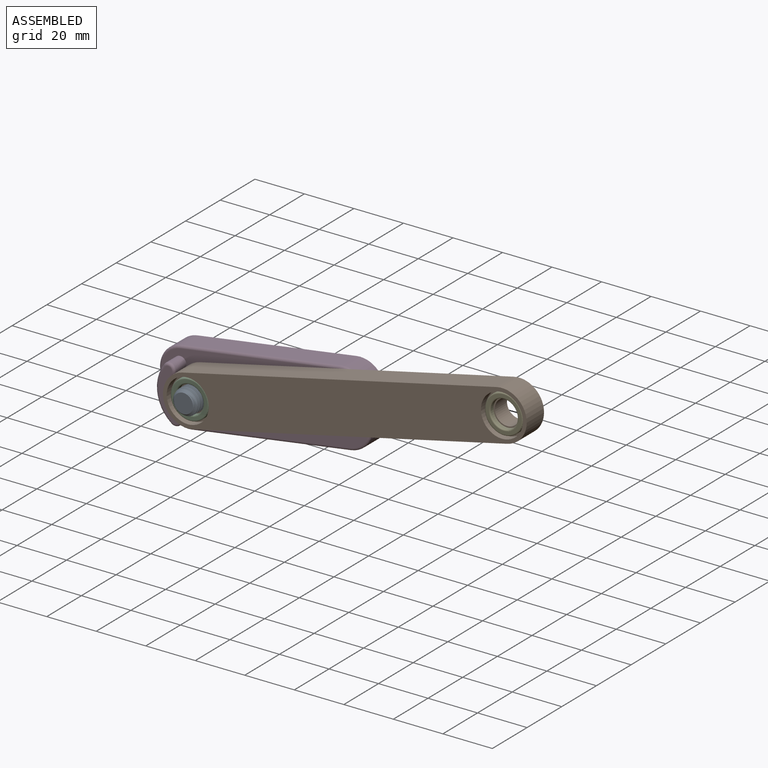
[diagram: assembled view]
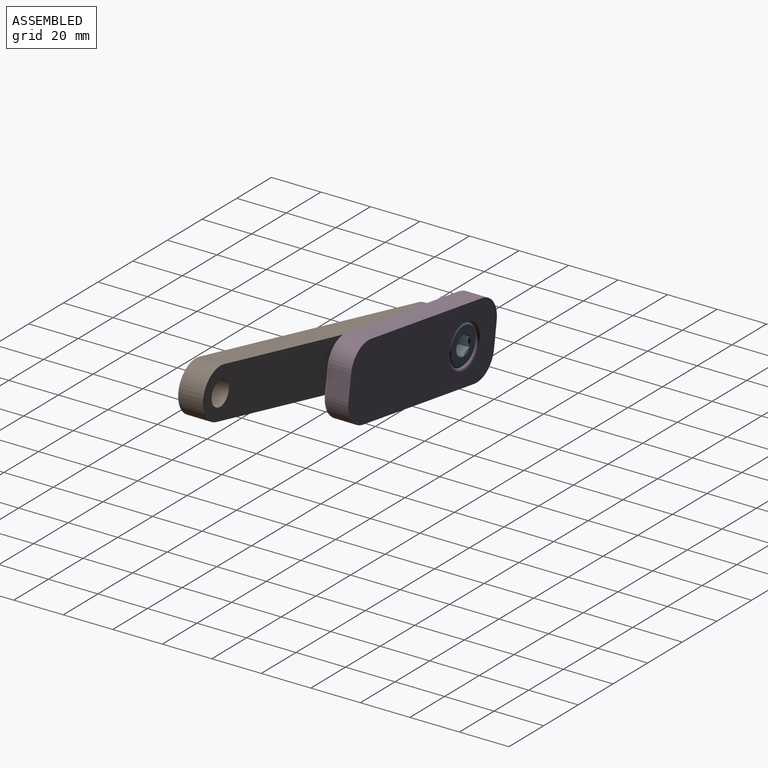
[diagram: assembled view, second angle]
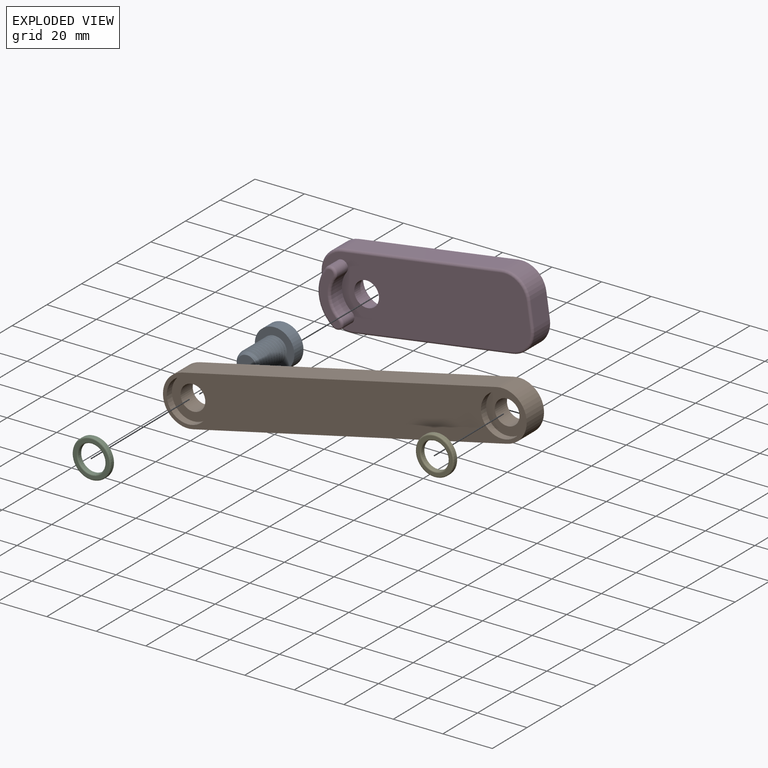
[diagram: exploded view]
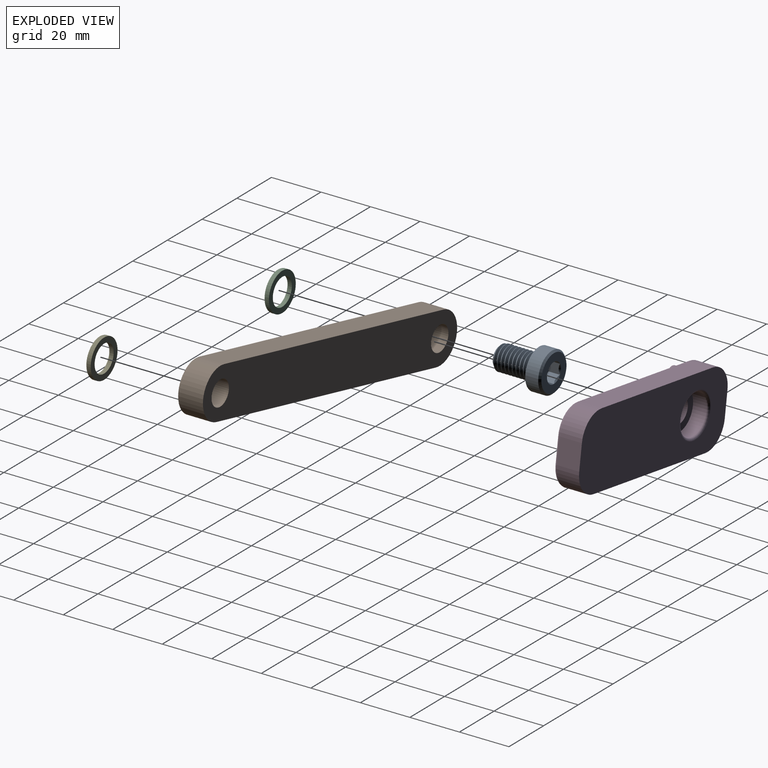
[diagram: exploded view, second angle]
ASSEMBLY  parts=5 mates=4
PART A: 24 faces, bbox 24x17.5x17.5 mm
  f0: plane 14.5x14.5mm, normal (-1,0,0), area 113.8mm2, adj f9,f11,f12,f13,f14,f15,f16
  f1: cylinder r=5mm len=14.88mm, axis (1,0,0), area 58mm2, adj f3,f5,f7,f10
  f2: cone r=3.88mm half-angle=45deg, axis (-1,0,0), area 19.2mm2, adj f3,f4,f5,f6
  f3: cone r=3.88mm half-angle=45deg, axis (-1,0,0), area 5.1mm2, adj f1,f2,f5,f7
  f4: plane 7.75x7.75mm, normal (1,0,0), area 47.2mm2, adj f2
  f5: bspline ~17.06x10mm, area 326.1mm2, adj f1,f2,f3,f6,f10
  f6: cylinder r=4.03mm len=15.85mm, axis (-1,0,0), area 50.1mm2, adj f2,f5,f7,f10
  f7: bspline ~16.5x10mm, area 326.6mm2, adj f1,f3,f6,f10
  f8: cylinder r=8mm len=16mm, axis (1,0,0), area 263.9mm2, adj f9,f10
  f9: cone r=8mm half-angle=45deg, axis (1,0,0), area 50.8mm2, adj f0,f8
  f10: plane 16.61x16.61mm, normal (1,0,0), area 136.7mm2, adj f1,f5,f6,f7,f8
  f11: cone r=4.04mm half-angle=45deg, axis (-1,0,0), area 0mm2, adj f0,f18
  f12: cone r=4.04mm half-angle=45deg, axis (-1,0,0), area 0mm2, adj f0,f19
  f13: cone r=4.04mm half-angle=45deg, axis (-1,0,0), area 0mm2, adj f0,f20
  f14: cone r=4.04mm half-angle=45deg, axis (-1,0,0), area 0mm2, adj f0,f21
  f15: cone r=4.04mm half-angle=45deg, axis (-1,0,0), area 0mm2, adj f0,f22
  f16: cone r=4.04mm half-angle=45deg, axis (-1,0,0), area 0mm2, adj f0,f23
  f17: plane 8.08x7mm, normal (-1,0,0), area 42.4mm2, adj f18,f19,f20,f21,f22,f23
  f18: plane 6.18x5.58mm, normal (0,-1,0), area 17.4mm2, adj f11,f17,f19,f23
  f19: plane 6.18x5.03mm, normal (0,-0.5,0.87), area 17.4mm2, adj f12,f17,f18,f20
  f20: plane 6.18x5.03mm, normal (0,0.5,0.87), area 17.4mm2, adj f13,f17,f19,f21
  f21: plane 6.18x5.58mm, normal (0,1,0), area 17.4mm2, adj f14,f17,f20,f22
  f22: plane 6.18x5.03mm, normal (0,0.5,-0.87), area 17.4mm2, adj f15,f17,f21,f23
  f23: plane 6.18x5.03mm, normal (0,-0.5,-0.87), area 17.4mm2, adj f16,f17,f18,f22
PART B: 12 faces, bbox 150x20x10 mm
  f0: cylinder r=5mm len=10mm, axis (0,0,-1), area 219.9mm2, adj f7,f9
  f1: cylinder r=5mm len=10mm, axis (0,0,-1), area 219.9mm2, adj f7,f11
  f2: plane 130x10mm, normal (0,-1,0), area 1300mm2, adj f3,f5,f6,f7
  f3: cylinder r=10mm len=20mm, axis (0,0,-1), area 314.2mm2, adj f2,f4,f6,f7
  f4: plane 130x10mm, normal (0,1,0), area 1300mm2, adj f3,f5,f6,f7
  f5: cylinder r=10mm len=20mm, axis (0,0,-1), area 314.2mm2, adj f2,f4,f6,f7
  f6: plane 150x20mm, normal (0,0,1), area 2460.2mm2, adj f2,f3,f4,f5,f8,f10
  f7: plane 150x20mm, normal (0,0,-1), area 2757.1mm2, adj f0,f1,f2,f3,f4,f5
  f8: cylinder r=8.5mm len=17mm, axis (0,0,1), area 160.2mm2, adj f6,f9
  f9: plane 17x17mm, normal (0,0,1), area 148.4mm2, adj f0,f8
  f10: cylinder r=8.5mm len=17mm, axis (0,0,1), area 160.2mm2, adj f6,f11
  f11: plane 17x17mm, normal (0,0,1), area 148.4mm2, adj f1,f10
PART C: 6 faces, bbox 16.8x16.8x2 mm
  f0: cylinder r=5.5mm len=11mm, axis (0,0,-1), area 51.8mm2, adj f3,f4
  f1: cylinder r=7.75mm len=15.5mm, axis (0,0,-1), area 73mm2, adj f3,f5
  f2: plane 14.5x14.5mm, normal (0,0,1), area 52mm2, adj f4,f5
  f3: plane 15.5x15.5mm, normal (0,0,-1), area 93.7mm2, adj f0,f1
  f4: torus R=6mm, axis (0,0,1), area 28mm2, adj f0,f2
  f5: torus R=7.25mm, axis (0,0,1), area 37.3mm2, adj f1,f2
PART D: 31 faces, bbox 86.6x31.6x17 mm
  f0: cylinder r=5mm len=10mm, axis (0,0,-1), area 110mm2, adj f9,f12
  f1: plane 10x9mm, normal (-1,0,0), area 90mm2, adj f2,f8,f10,f26
  f2: cylinder r=10mm len=10mm, axis (0,0,-1), area 141.4mm2, adj f1,f3,f10,f24
  f3: plane 65x9mm, normal (0,-1,0), area 585mm2, adj f2,f4,f10,f23
  f4: cylinder r=10mm len=10mm, axis (0,0,-1), area 141.4mm2, adj f3,f5,f10,f25
  f5: plane 10x9mm, normal (1,0,0), area 90mm2, adj f4,f6,f10,f27
  f6: cylinder r=10mm len=10mm, axis (0,0,-1), area 141.4mm2, adj f5,f7,f10,f29
  f7: plane 65x9mm, normal (0,1,0), area 585mm2, adj f6,f8,f10,f30
  f8: cylinder r=10mm len=10mm, axis (0,0,-1), area 141.4mm2, adj f1,f7,f10,f28
  f9: plane 83x28mm, normal (0,0,1), area 2058.1mm2, adj f0,f13,f14,f15,f16,f23,f24,f25
  f10: plane 85x30mm, normal (0,0,-1), area 2209.7mm2, adj f1,f2,f3,f4,f5,f6,f7,f8
  f11: cylinder r=8mm len=16mm, axis (0,0,-1), area 276.5mm2, adj f12,f22
  f12: plane 16x16mm, normal (0,0,-1), area 122.5mm2, adj f0,f11
  f13: cylinder r=15mm len=21.21mm, axis (0,0,-1), area 141.4mm2, adj f9,f14,f16,f20
  f14: cylinder r=2.5mm len=6mm, axis (0,0,-1), area 47.1mm2, adj f9,f13,f15,f18
  f15: cylinder r=10mm len=14.14mm, axis (0,0,-1), area 94.2mm2, adj f9,f14,f16,f19
  f16: cylinder r=2.5mm len=6mm, axis (0,0,-1), area 47.1mm2, adj f9,f13,f15,f21
  f17: plane 20.68x6.66mm, normal (0,0,1), area 66mm2, adj f18,f19,f20,f21
  f18: torus R=1.5mm, axis (0,0,1), area 10.5mm2, adj f14,f17,f19,f20
  f19: torus R=11mm, axis (0,0,1), area 25.6mm2, adj f15,f17,f18,f21
  f20: torus R=14mm, axis (0,0,1), area 36.1mm2, adj f13,f17,f18,f21
  f21: torus R=1.5mm, axis (0,0,1), area 10.5mm2, adj f16,f17,f19,f20
  f22: torus R=9mm, axis (0,0,1), area 82.5mm2, adj f10,f11
  f23: cylinder r=1mm len=65mm, axis (-1,0,0), area 102.1mm2, adj f3,f9,f24,f25
  f24: torus R=9mm, axis (0,0,1), area 23.8mm2, adj f2,f9,f23,f26
  f25: torus R=9mm, axis (0,0,1), area 23.8mm2, adj f4,f9,f23,f27
  f26: cylinder r=1mm len=10mm, axis (0,1,0), area 15.7mm2, adj f1,f9,f24,f28
  f27: cylinder r=1mm len=10mm, axis (0,-1,0), area 15.7mm2, adj f5,f9,f25,f29
  f28: torus R=9mm, axis (0,0,1), area 23.8mm2, adj f8,f9,f26,f30
  f29: torus R=9mm, axis (0,0,1), area 23.8mm2, adj f6,f9,f27,f30
  f30: cylinder r=1mm len=65mm, axis (1,0,0), area 102.1mm2, adj f7,f9,f28,f29
PART E: same geometry as C
PLACE A rot(axis=(0,0,-1),90deg) t=(-135.1,-43.02,33.31)mm
PLACE B rot(axis=(0.99,-0.11,0.11),90.4deg) t=(-71.69,-43.46,47.6)mm
PLACE C rot(axis=(0.99,-0.11,0.11),90.4deg) t=(-71.69,-43.46,47.6)mm
PLACE D rot(axis=(0.99,-0.07,0.07),90.1deg) t=(-64.66,-58.43,52.72)mm
PLACE E rot(axis=(0.99,-0.11,0.11),90.4deg) t=(55.13,-43.33,76.16)mm
MATE revolute A.f9 <-> D.f0  axis (0,-1,0) through (-135.1,-35.02,33.28)mm
MATE fastened B.f1 <-> E.f1  axis (0,-1,0) through (-8.28,-45.39,61.89)mm
MATE revolute D.f0 <-> B.f0  axis (0,1,0) through (-135.1,-38.52,33.29)mm
MATE fastened C.f0 <-> B.f0  axis (0,1,0) through (-135.1,-45.52,33.32)mm
